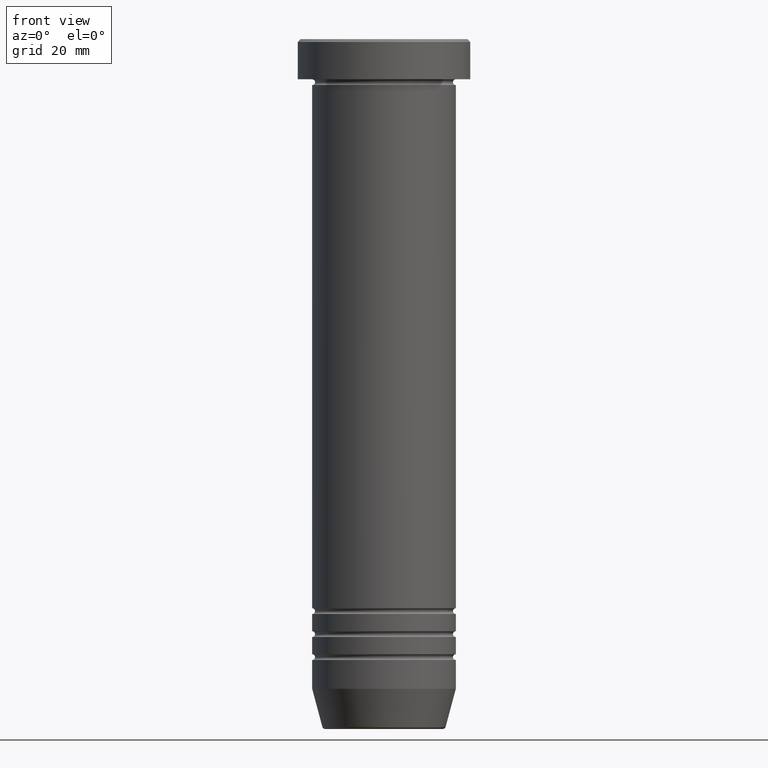
[diagram: clean part render]
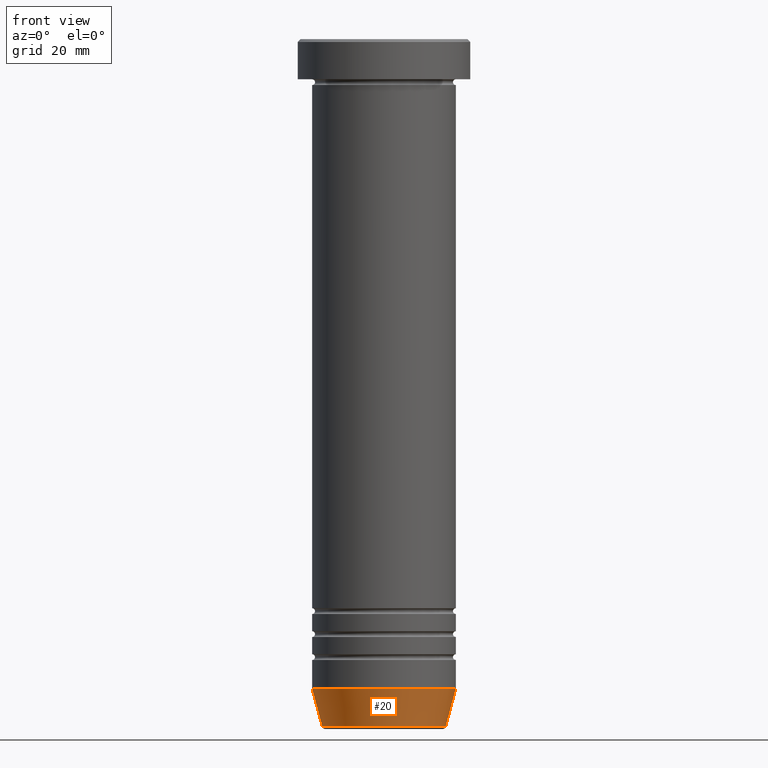
[diagram: same view with one face highlighted and labeled with its STEP entity id]
A machine part, front view. The second image highlights one B-rep face of the part: STEP entity #20.
In plain terms, the highlighted conical surface has half-angle 15 deg.
Its self-contained STEP definition (entity closure, byte-faithful):
#20 = ADVANCED_FACE ( 'NONE', ( #849 ), #662, .T. ) ;
#35 = EDGE_CURVE ( 'NONE', #782, #991, #339, .T. ) ;
#54 = ORIENTED_EDGE ( 'NONE', *, *, #1014, .F. ) ;
#102 = AXIS2_PLACEMENT_3D ( 'NONE', #296, #452, #397 ) ;
#115 = CARTESIAN_POINT ( 'NONE',  ( 0.000000000000000000, 0.000000000000000000, -120.0000000000000000 ) ) ;
#189 = DIRECTION ( 'NONE',  ( 0.2588190451025213501, 0.000000000000000000, 0.9659258262890680902 ) ) ;
#197 = CARTESIAN_POINT ( 'NONE',  ( -12.50000000000000000, 1.530808498934191521E-15, -112.9999999999999858 ) ) ;
#199 = AXIS2_PLACEMENT_3D ( 'NONE', #115, #508, #913 ) ;
#206 = EDGE_CURVE ( 'NONE', #940, #635, #364, .T. ) ;
#217 = ORIENTED_EDGE ( 'NONE', *, *, #206, .F. ) ;
#296 = CARTESIAN_POINT ( 'NONE',  ( 0.000000000000000000, 0.000000000000000000, -112.9999999999999858 ) ) ;
#339 = LINE ( 'NONE', #503, #716 ) ;
#357 = AXIS2_PLACEMENT_3D ( 'NONE', #536, #368, #1020 ) ;
#364 = LINE ( 'NONE', #695, #442 ) ;
#368 = DIRECTION ( 'NONE',  ( -0.000000000000000000, -0.000000000000000000, 1.000000000000000000 ) ) ;
#374 = CIRCLE ( 'NONE', #357, 10.72365507213718416 ) ;
#397 = DIRECTION ( 'NONE',  ( 1.000000000000000000, 0.000000000000000000, 0.000000000000000000 ) ) ;
#414 = CARTESIAN_POINT ( 'NONE',  ( 10.72365507213718416, 0.000000000000000000, -119.6294095225512706 ) ) ;
#442 = VECTOR ( 'NONE', #1016, 1000.000000000000000 ) ;
#452 = DIRECTION ( 'NONE',  ( -0.000000000000000000, -0.000000000000000000, 1.000000000000000000 ) ) ;
#503 = CARTESIAN_POINT ( 'NONE',  ( 10.62435565298213547, 0.000000000000000000, -120.0000000000000000 ) ) ;
#508 = DIRECTION ( 'NONE',  ( -0.000000000000000000, -0.000000000000000000, 1.000000000000000000 ) ) ;
#534 = CARTESIAN_POINT ( 'NONE',  ( 12.50000000000000000, 0.000000000000000000, -112.9999999999999858 ) ) ;
#536 = CARTESIAN_POINT ( 'NONE',  ( 0.000000000000000000, 0.000000000000000000, -119.6294095225512706 ) ) ;
#635 = VERTEX_POINT ( 'NONE', #197 ) ;
#662 = CONICAL_SURFACE ( 'NONE', #199, 10.62435565298213547, 0.2617993877991500740 ) ;
#695 = CARTESIAN_POINT ( 'NONE',  ( -10.62435565298213547, 1.301108314342765923E-15, -120.0000000000000000 ) ) ;
#707 = EDGE_CURVE ( 'NONE', #940, #782, #374, .T. ) ;
#716 = VECTOR ( 'NONE', #189, 1000.000000000000000 ) ;
#782 = VERTEX_POINT ( 'NONE', #414 ) ;
#813 = ORIENTED_EDGE ( 'NONE', *, *, #707, .T. ) ;
#849 = FACE_OUTER_BOUND ( 'NONE', #976, .T. ) ;
#913 = DIRECTION ( 'NONE',  ( 1.000000000000000000, 0.000000000000000000, 0.000000000000000000 ) ) ;
#940 = VERTEX_POINT ( 'NONE', #1035 ) ;
#959 = ORIENTED_EDGE ( 'NONE', *, *, #35, .T. ) ;
#976 = EDGE_LOOP ( 'NONE', ( #217, #813, #959, #54 ) ) ;
#991 = VERTEX_POINT ( 'NONE', #534 ) ;
#1014 = EDGE_CURVE ( 'NONE', #635, #991, #1024, .T. ) ;
#1016 = DIRECTION ( 'NONE',  ( -0.2588190451025213501, 3.169619151431772337E-17, 0.9659258262890680902 ) ) ;
#1020 = DIRECTION ( 'NONE',  ( -1.000000000000000000, 0.000000000000000000, 0.000000000000000000 ) ) ;
#1024 = CIRCLE ( 'NONE', #102, 12.50000000000000000 ) ;
#1035 = CARTESIAN_POINT ( 'NONE',  ( -10.72365507213718416, 1.422038742429750121E-15, -119.6294095225512706 ) ) ;